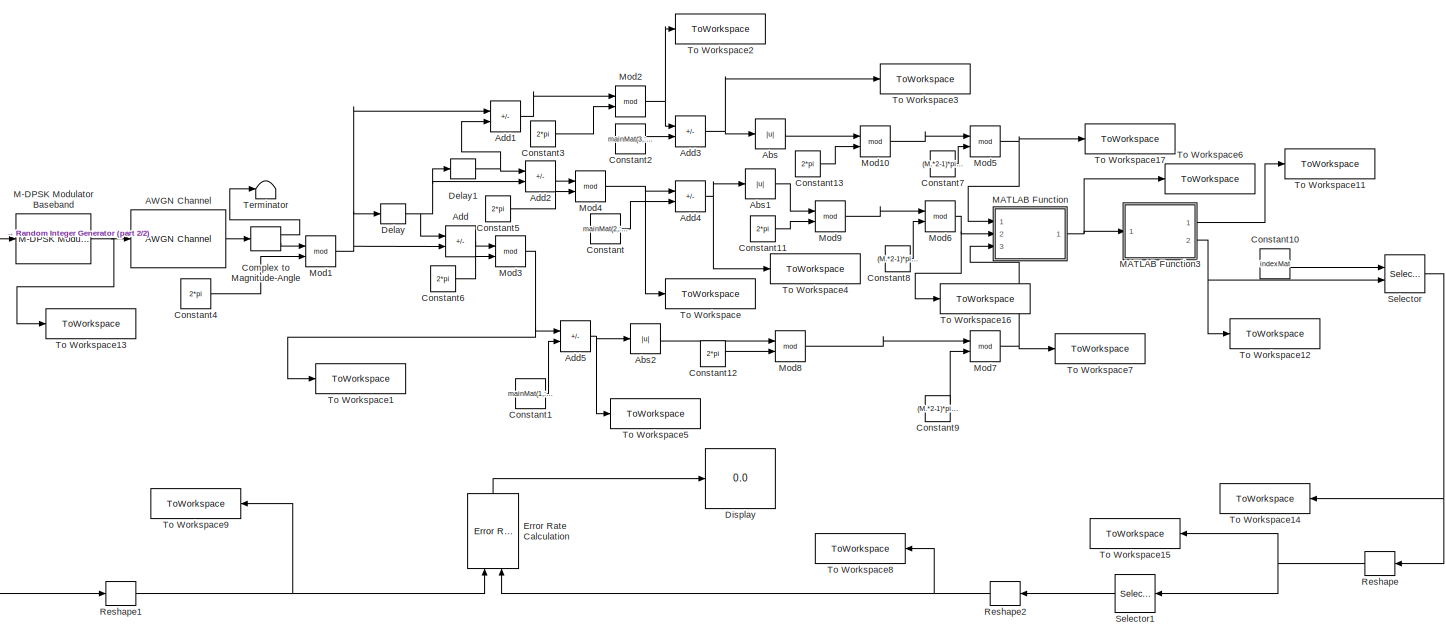
[diagram: root canvas - part 1/2, most of the canvas]
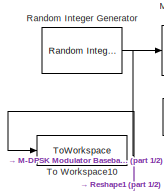
[diagram: root canvas - part 2/2, middle left region]
MODEL slx_96e6f4481058
KIND model
CONFIG AbsTol = auto
CONFIG EnableMultiTasking = off
CONFIG FixedStep = auto
CONFIG MaxStep = auto
CONFIG MinStep = auto
CONFIG RelTol = 1e-3
CONFIG SampleTimeConstraint = Unconstrained
CONFIG SolverName = VariableStepAuto
CONFIG StartTime = 0.0
CONFIG StopTime = stopTime
BLOCK [Reference] AWGN Channel  REF=commchan3/AWGN
Channel
  Ports = [1, 1]
  SourceBlock = commchan3/AWGN\nChannel
  SourceProductBaseCode = CM
  SourceType = AWGN Channel
  UserDataPersistent = on
BLOCK [Abs] Abs
  SaturateOnIntegerOverflow = off
BLOCK [Abs] Abs1
  SaturateOnIntegerOverflow = off
BLOCK [Abs] Abs2
  SaturateOnIntegerOverflow = off
BLOCK [Sum] Add
  IconShape = rectangular
  Inputs = -+
  Ports = [2, 1]
BLOCK [Sum] Add1
  IconShape = rectangular
  Inputs = +-
  Ports = [2, 1]
BLOCK [Sum] Add2
  IconShape = rectangular
  Inputs = -+
  Ports = [2, 1]
BLOCK [Sum] Add3
  IconShape = rectangular
  Inputs = +-
  Ports = [2, 1]
BLOCK [Sum] Add4
  IconShape = rectangular
  Inputs = +-
  Ports = [2, 1]
BLOCK [Sum] Add5
  IconShape = rectangular
  Inputs = +-
  Ports = [2, 1]
BLOCK [ComplexToMagnitudeAngle] Complex to Magnitude-Angle
  Ports = [1, 2]
BLOCK [Constant] Constant
  Value = mainMat(2,:,:)
BLOCK [Constant] Constant1
  Value = mainMat(1,:,:)
BLOCK [Constant] Constant10
  Value = indexMat
BLOCK [Constant] Constant11
  Value = 2*pi
BLOCK [Constant] Constant12
  Value = 2*pi
BLOCK [Constant] Constant13
  Value = 2*pi
BLOCK [Constant] Constant2
  Value = mainMat(3,:,:)
BLOCK [Constant] Constant3
  Value = 2*pi
BLOCK [Constant] Constant4
  Value = 2*pi
BLOCK [Constant] Constant5
  Value = 2*pi
BLOCK [Constant] Constant6
  Value = 2*pi
BLOCK [Constant] Constant7
  Value = (M.*2-1)*pi/M
BLOCK [Constant] Constant8
  Value = (M.*2-1)*pi/M
BLOCK [Constant] Constant9
  Value = (M.*2-1)*pi/M
BLOCK [Delay] Delay
  DelayLength = 1
  InitialCondition = 0
  InputPortMap = u0
  Ports = [1, 1]
BLOCK [Delay] Delay1
  DelayLength = 1
  InitialCondition = 0
  InputPortMap = u0
  Ports = [1, 1]
BLOCK [Display] Display
  Decimation = 1
  Ports = [1]
BLOCK [Reference] Error Rate Calculation  REF=commsink2/Error Rate
Calculation
  NameLocation = right
  Ports = [2, 1]
  SourceBlock = commsink2/Error Rate\nCalculation
  SourceProductName = Communications Toolbox
  SourceType = Error Rate Calculation
BLOCK [Reference] M-DPSK Modulator Baseband  REF=commdigbbndpm3/M-DPSK
Modulator
Baseband
  Ports = [1, 1]
  SourceBlock = commdigbbndpm3/M-DPSK\nModulator\nBaseband
  SourceProductBaseCode = CM
  SourceType = M-DPSK Modulator Baseband
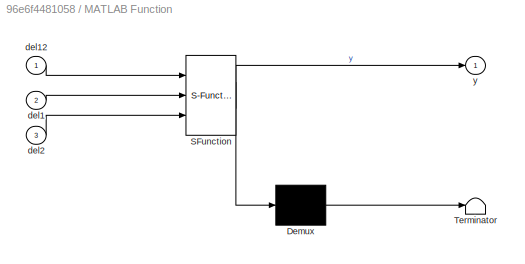
BLOCK [SubSystem] MATLAB Function
  ErrorFcn = Stateflow.Translate.translate
  PermitHierarchicalResolution = ExplicitOnly
  Ports = [3, 1]
  RequestExecContextInheritance = off
  SFBlockType = MATLAB Function
  TreatAsAtomicUnit = on
BLOCK [Demux] MATLAB Function/ Demux 
  Outputs = 1
  Ports = [1, 1]
BLOCK [S-Function] MATLAB Function/ SFunction 
  EnableBusSupport = on
  FunctionName = sf_sfun
  PortCounts = [3 2]
  Ports = [3, 2]
  SFcnIsStateOwnerBlock = off
  SFunctionDeploymentMode = off
  Tag = Stateflow S-Function 2
BLOCK [Terminator] MATLAB Function/ Terminator 
BLOCK [Inport] MATLAB Function/del1
  Port = 2
BLOCK [Inport] MATLAB Function/del12
BLOCK [Inport] MATLAB Function/del2
  Port = 3
BLOCK [Outport] MATLAB Function/y
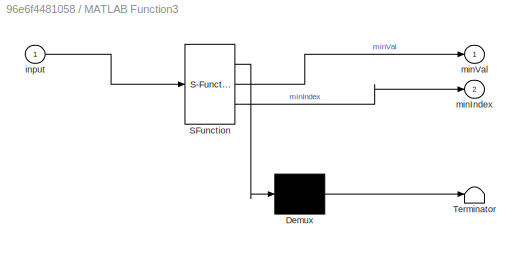
BLOCK [SubSystem] MATLAB Function3
  ErrorFcn = Stateflow.Translate.translate
  PermitHierarchicalResolution = ExplicitOnly
  Ports = [1, 2]
  RequestExecContextInheritance = off
  SFBlockType = MATLAB Function
  TreatAsAtomicUnit = on
BLOCK [Demux] MATLAB Function3/ Demux 
  Outputs = 1
  Ports = [1, 1]
BLOCK [S-Function] MATLAB Function3/ SFunction 
  EnableBusSupport = on
  FunctionName = sf_sfun
  PortCounts = [1 3]
  Ports = [1, 3]
  SFcnIsStateOwnerBlock = off
  SFunctionDeploymentMode = off
  Tag = Stateflow S-Function 4
BLOCK [Terminator] MATLAB Function3/ Terminator 
BLOCK [Inport] MATLAB Function3/input
BLOCK [Outport] MATLAB Function3/minIndex
  Port = 2
BLOCK [Outport] MATLAB Function3/minVal
BLOCK [Math] Mod1
  Operator = mod
  Ports = [2, 1]
BLOCK [Math] Mod10
  Operator = mod
  Ports = [2, 1]
BLOCK [Math] Mod2
  Operator = mod
  Ports = [2, 1]
BLOCK [Math] Mod3
  Operator = mod
  Ports = [2, 1]
BLOCK [Math] Mod4
  Operator = mod
  Ports = [2, 1]
BLOCK [Math] Mod5
  Operator = mod
  Ports = [2, 1]
BLOCK [Math] Mod6
  Operator = mod
  Ports = [2, 1]
BLOCK [Math] Mod7
  Operator = mod
  Ports = [2, 1]
BLOCK [Math] Mod8
  Operator = mod
  Ports = [2, 1]
BLOCK [Math] Mod9
  Operator = mod
  Ports = [2, 1]
BLOCK [Reference] Random Integer Generator  REF=commrandsrc3/Random Integer
Generator
  Ports = [0, 1]
  SourceBlock = commrandsrc3/Random Integer\nGenerator
  SourceProductBaseCode = CM
  SourceType = Random Integer Generator
BLOCK [Reshape] Reshape
  Ports = [1, 1]
BLOCK [Reshape] Reshape1
  Ports = [1, 1]
BLOCK [Reshape] Reshape2
  Ports = [1, 1]
BLOCK [Selector] Selector
  IndexOptions = Select all,Index vector (port)
  Indices = [1 3],1
  InputPortWidth = 3
  NumberOfDimensions = 2
  OutputSizes = 1,1
  Ports = [2, 1]
BLOCK [Selector] Selector1
  IndexOptions = Select all,Index vector (dialog)
  Indices = [1 3],1
  InputPortWidth = 3
  NumberOfDimensions = 2
  OutputSizes = 1,1
  Ports = [1, 1]
BLOCK [Terminator] Terminator
BLOCK [ToWorkspace] To Workspace
  FixptAsFi = on
  MaxDataPoints = inf
  Ports = [1]
  SampleTime = -1
  VariableName = del1
BLOCK [ToWorkspace] To Workspace1
  FixptAsFi = on
  MaxDataPoints = inf
  Ports = [1]
  SampleTime = -1
  VariableName = del2
BLOCK [ToWorkspace] To Workspace10
  FixptAsFi = on
  MaxDataPoints = inf
  Ports = [1]
  SampleTime = -1
  VariableName = randInt
BLOCK [ToWorkspace] To Workspace11
  FixptAsFi = on
  MaxDataPoints = inf
  Ports = [1]
  SampleTime = -1
  VariableName = minVal
BLOCK [ToWorkspace] To Workspace12
  FixptAsFi = on
  MaxDataPoints = inf
  Ports = [1]
  SampleTime = -1
  VariableName = minIndex
BLOCK [ToWorkspace] To Workspace13
  FixptAsFi = on
  MaxDataPoints = inf
  Ports = [1]
  SampleTime = -1
  VariableName = mod
BLOCK [ToWorkspace] To Workspace14
  FixptAsFi = on
  MaxDataPoints = inf
  Ports = [1]
  SampleTime = -1
  VariableName = checkIndexing
BLOCK [ToWorkspace] To Workspace15
  FixptAsFi = on
  MaxDataPoints = inf
  Ports = [1]
  SampleTime = -1
  VariableName = checkReshape
BLOCK [ToWorkspace] To Workspace16
  FixptAsFi = on
  MaxDataPoints = inf
  Ports = [1]
  SampleTime = -1
  VariableName = newMod1
BLOCK [ToWorkspace] To Workspace17
  FixptAsFi = on
  MaxDataPoints = inf
  Ports = [1]
  SampleTime = -1
  VariableName = newMod12
BLOCK [ToWorkspace] To Workspace2
  FixptAsFi = on
  MaxDataPoints = inf
  Ports = [1]
  SampleTime = -1
  VariableName = del1and2
BLOCK [ToWorkspace] To Workspace3
  FixptAsFi = on
  MaxDataPoints = inf
  Ports = [1]
  SampleTime = -1
  VariableName = subBoth
BLOCK [ToWorkspace] To Workspace4
  FixptAsFi = on
  MaxDataPoints = inf
  Ports = [1]
  SampleTime = -1
  VariableName = subDel1
BLOCK [ToWorkspace] To Workspace5
  FixptAsFi = on
  MaxDataPoints = inf
  Ports = [1]
  SampleTime = -1
  VariableName = subDel2
BLOCK [ToWorkspace] To Workspace6
  FixptAsFi = on
  MaxDataPoints = inf
  Ports = [1]
  SampleTime = -1
  VariableName = resultOut
BLOCK [ToWorkspace] To Workspace7
  FixptAsFi = on
  MaxDataPoints = inf
  Ports = [1]
  SampleTime = -1
  VariableName = newMod2
BLOCK [ToWorkspace] To Workspace8
  FixptAsFi = on
  MaxDataPoints = inf
  Ports = [1]
  SampleTime = -1
  VariableName = finalSelector
BLOCK [ToWorkspace] To Workspace9
  FixptAsFi = on
  MaxDataPoints = inf
  Ports = [1]
  SampleTime = -1
  VariableName = randIntReshape
LINE AWGN Channel:1 -> Complex to Magnitude-Angle:1
LINE Abs1:1 -> Mod9:1
LINE Abs2:1 -> Mod8:1
LINE Abs:1 -> Mod10:1
LINE Add1:1 -> Mod2:1
LINE Add2:1 -> Mod4:1
NET Add3:1 -> Abs:1, To Workspace3:1
NET Add4:1 -> Abs1:1, To Workspace4:1
NET Add5:1 -> Abs2:1, To Workspace5:1
LINE Add:1 -> Mod3:1
LINE Complex to Magnitude-Angle:1 -> Terminator:1
LINE Complex to Magnitude-Angle:2 -> Mod1:1
LINE Constant10:1 -> Selector:1
LINE Constant11:1 -> Mod9:2
LINE Constant12:1 -> Mod8:2
LINE Constant13:1 -> Mod10:2
LINE Constant1:1 -> Add5:2
LINE Constant2:1 -> Add3:2
LINE Constant3:1 -> Mod2:2
LINE Constant4:1 -> Mod1:2
LINE Constant5:1 -> Mod4:2
LINE Constant6:1 -> Mod3:2
LINE Constant7:1 -> Mod5:2
LINE Constant8:1 -> Mod6:2
LINE Constant9:1 -> Mod7:2
LINE Constant:1 -> Add4:2
NET Delay1:1 -> Add1:2, Add2:1
NET Delay:1 -> Add2:2, Add:1, Delay1:1
LINE Error Rate Calculation:1 -> Display:1
NET M-DPSK Modulator Baseband:1 -> AWGN Channel:1, To Workspace13:1
LINE MATLAB Function3:1 -> To Workspace11:1
NET MATLAB Function3:2 -> Selector:2, To Workspace12:1
NET MATLAB Function:1 -> MATLAB Function3:1, To Workspace6:1
LINE Mod10:1 -> Mod5:1
NET Mod1:1 -> Add1:1, Add:2, Delay:1
NET Mod2:1 -> Add3:1, To Workspace2:1
NET Mod3:1 -> Add5:1, To Workspace1:1
NET Mod4:1 -> Add4:1, To Workspace:1
NET Mod5:1 -> MATLAB Function:1, To Workspace17:1
NET Mod6:1 -> MATLAB Function:2, To Workspace16:1
NET Mod7:1 -> MATLAB Function:3, To Workspace7:1
LINE Mod8:1 -> Mod7:1
LINE Mod9:1 -> Mod6:1
NET Random Integer Generator:1 -> M-DPSK Modulator Baseband:1, Reshape1:1, To Workspace10:1
NET Reshape1:1 -> Error Rate Calculation:1, To Workspace9:1
NET Reshape2:1 -> Error Rate Calculation:2, To Workspace8:1
NET Reshape:1 -> Selector1:1, To Workspace15:1
LINE Selector1:1 -> Reshape2:1
NET Selector:1 -> Reshape:1, To Workspace14:1
note: NET lines group one-source signal fan-out (src -> all destinations, sorted); 1:1 wires keep LINE
CHART MATLAB Function states=1 transitions=1
  STATE_LABEL 'eML_blk_kernel()'
  STATE_LABEL 'SCRIPT:\nfunction y = fcn(del12, del1,del2)\n\ny = abs(del2(:,:,:,:) + del1(:,:,:,:) + del12(:,:,:,:));\n'
CHART MATLAB Function3 states=1 transitions=1
  STATE_LABEL 'eML_blk_kernel()'
  STATE_LABEL "SCRIPT:\nfunction [minVal, minIndex] = fcn(input)\n\n[minVal, minIndex] = min(input, [], [1 2 3], 'linear');\n"
CHART  states=0 transitions=0
CHART  states=0 transitions=0
